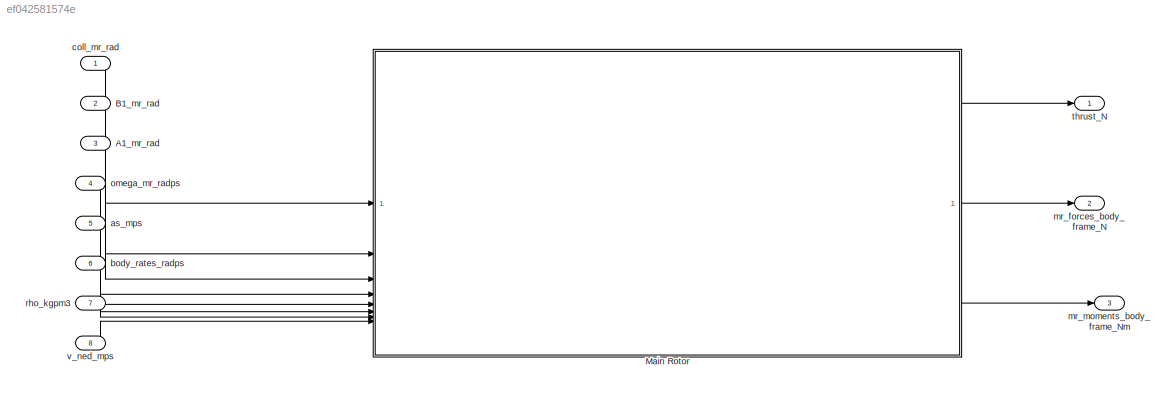
MODEL slx_ef042581574e
KIND library
CONFIG AbsTol = auto
CONFIG EnableMultiTasking = off
CONFIG FixedStep = auto
CONFIG MaxStep = auto
CONFIG MinStep = auto
CONFIG RelTol = 1e-3
CONFIG SampleTimeConstraint = Unconstrained
CONFIG SolverName = VariableStepAuto
CONFIG StartTime = 0.0
CONFIG StopTime = 10.0
BLOCK [Inport] A1_mr_rad
  Port = 3
BLOCK [Inport] B1_mr_rad
  Port = 2
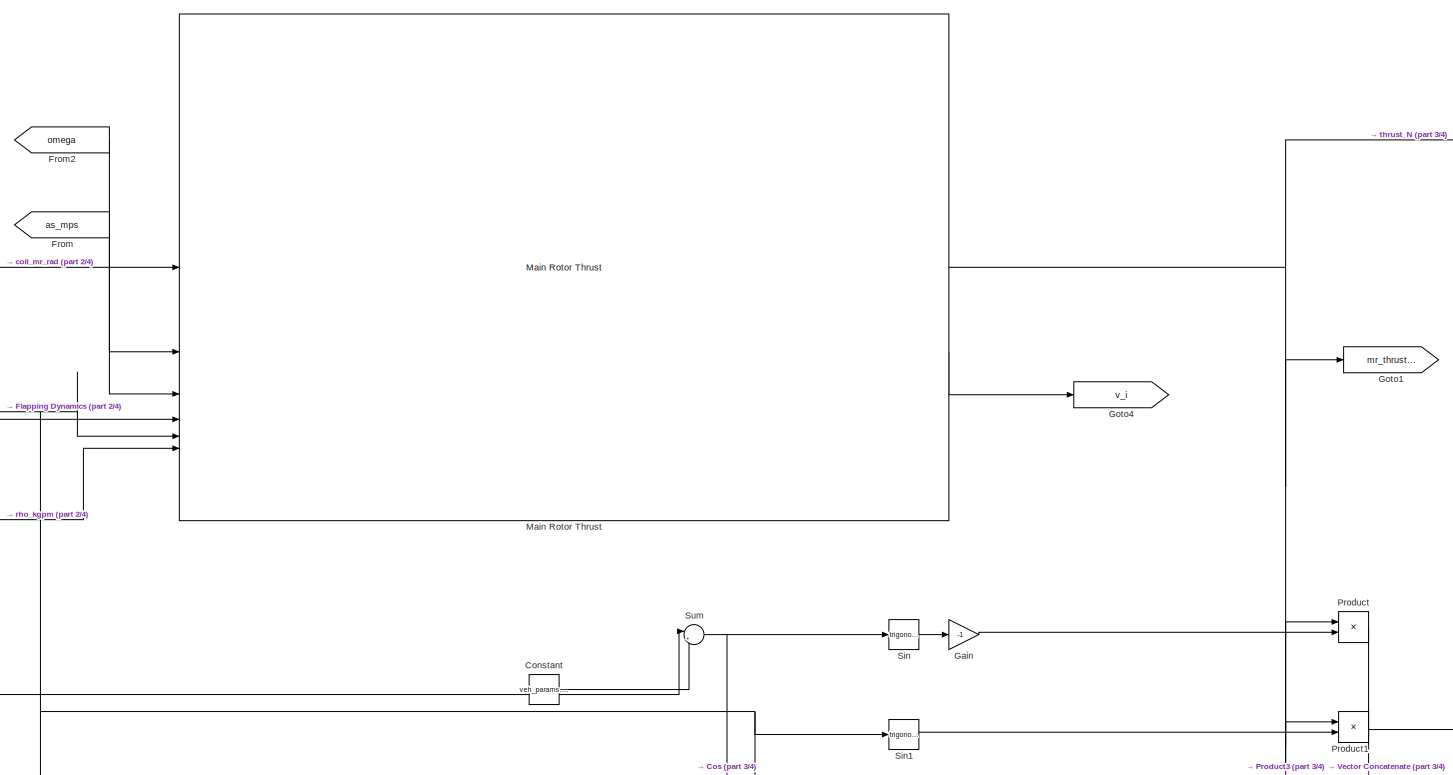
[diagram: Main Rotor - part 1/4, top center region]
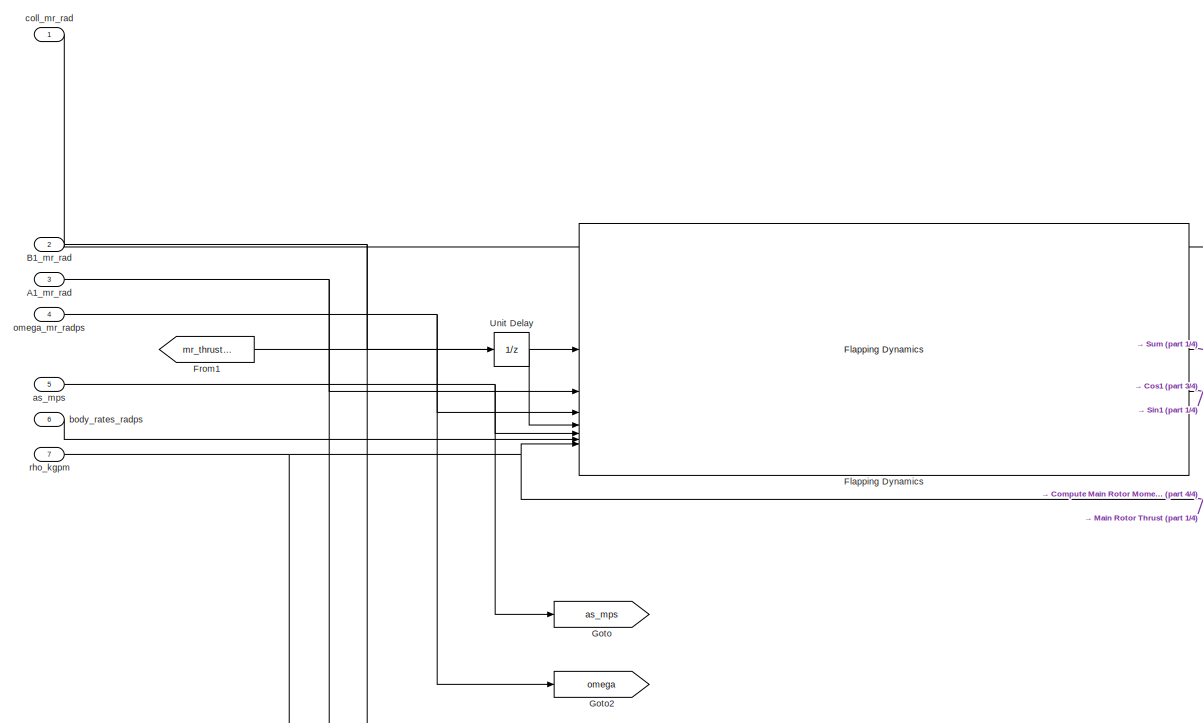
[diagram: Main Rotor - part 2/4, top left region]
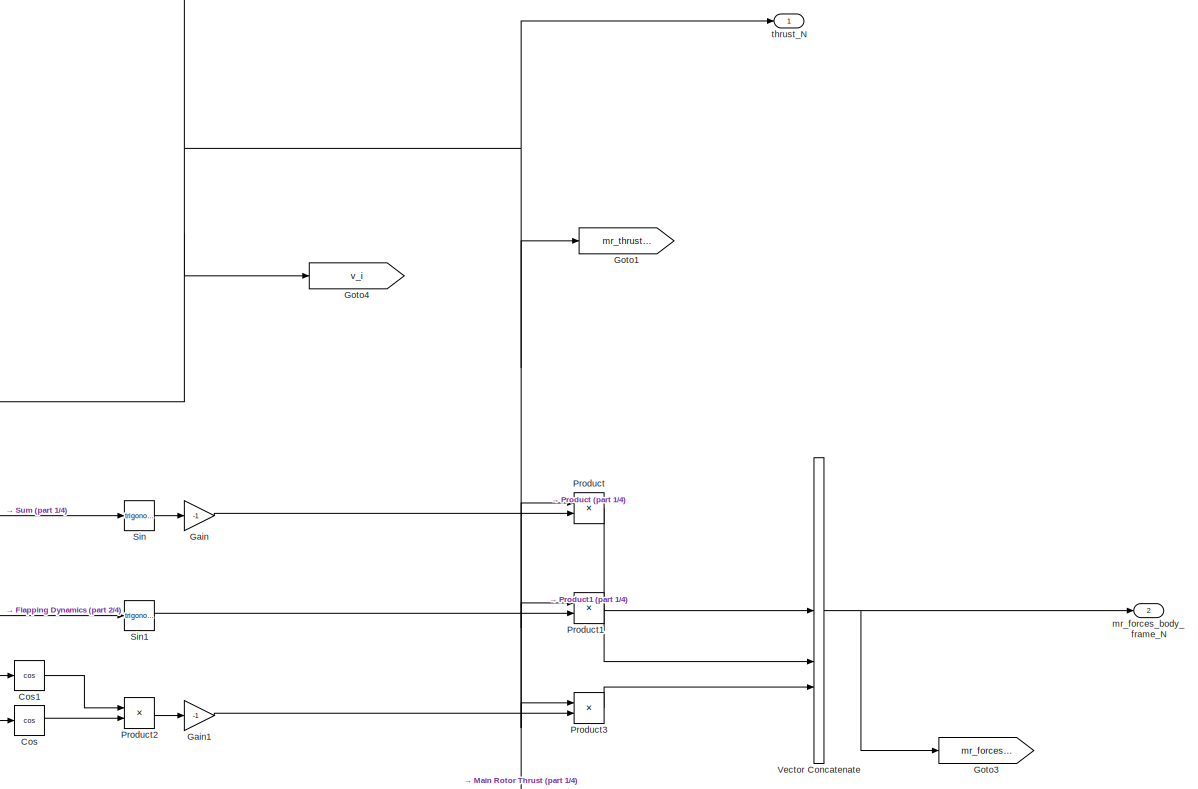
[diagram: Main Rotor - part 3/4, middle right region]
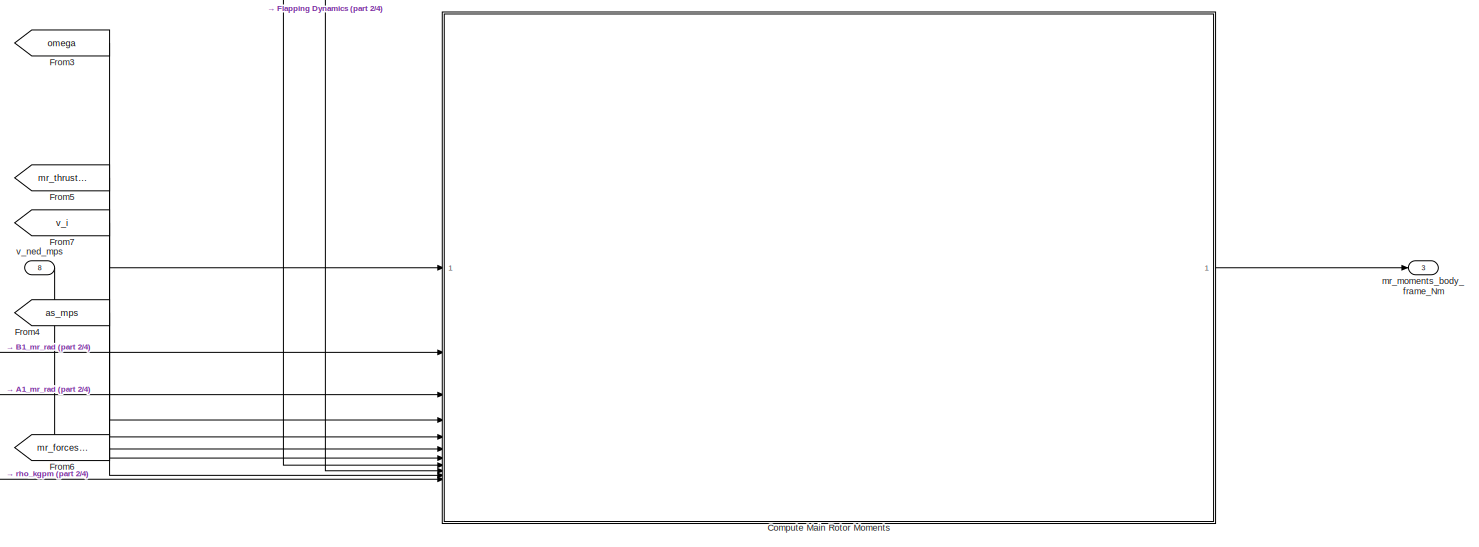
[diagram: Main Rotor - part 4/4, bottom center region]
BLOCK [SubSystem] Main Rotor
BLOCK [Inport] Main Rotor/A1_mr_rad
  Port = 3
BLOCK [Inport] Main Rotor/B1_mr_rad
  Port = 2
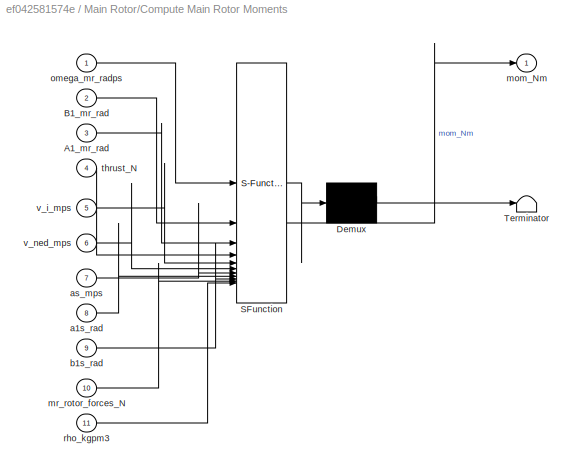
BLOCK [SubSystem] Main Rotor/Compute Main Rotor Moments
  ErrorFcn = Stateflow.Translate.translate
  LibrarySourceBlock = simulink/User-Defined\nFunctions/MATLAB Function
  PermitHierarchicalResolution = ExplicitOnly
  SFBlockType = MATLAB Function
  TreatAsAtomicUnit = on
BLOCK [Demux] Main Rotor/Compute Main Rotor Moments/ Demux 
  Outputs = 1
BLOCK [S-Function] Main Rotor/Compute Main Rotor Moments/ SFunction 
  EnableBusSupport = off
  FunctionName = sf_sfun
  Parameters = universal_constants,veh_params
  PortCounts = [11 2]
  SFcnIsStateOwnerBlock = off
  SFunctionDeploymentMode = off
  Tag = Stateflow S-Function 1
BLOCK [Terminator] Main Rotor/Compute Main Rotor Moments/ Terminator 
BLOCK [Inport] Main Rotor/Compute Main Rotor Moments/A1_mr_rad
  Port = 3
BLOCK [Inport] Main Rotor/Compute Main Rotor Moments/B1_mr_rad
  Port = 2
BLOCK [Inport] Main Rotor/Compute Main Rotor Moments/a1s_rad
  Port = 8
BLOCK [Inport] Main Rotor/Compute Main Rotor Moments/as_mps
  Port = 7
BLOCK [Inport] Main Rotor/Compute Main Rotor Moments/b1s_rad
  Port = 9
BLOCK [Outport] Main Rotor/Compute Main Rotor Moments/mom_Nm
BLOCK [Inport] Main Rotor/Compute Main Rotor Moments/mr_rotor_forces_N
  Port = 10
BLOCK [Inport] Main Rotor/Compute Main Rotor Moments/omega_mr_radps
BLOCK [Inport] Main Rotor/Compute Main Rotor Moments/rho_kgpm3
  Port = 11
BLOCK [Inport] Main Rotor/Compute Main Rotor Moments/thrust_N
  Port = 4
BLOCK [Inport] Main Rotor/Compute Main Rotor Moments/v_i_mps
  Port = 5
BLOCK [Inport] Main Rotor/Compute Main Rotor Moments/v_ned_mps
  Port = 6
BLOCK [Constant] Main Rotor/Constant
  SampleTime = plant_sample_time_s
  Value = veh_params.main_rotor.shaft_tilt_rad
BLOCK [Trigonometry] Main Rotor/Cos
  Operator = cos
BLOCK [Trigonometry] Main Rotor/Cos1
  Operator = cos
BLOCK [Reference] Main Rotor/Flapping Dynamics  REF=flapping_dynamics/Flapping Dynamics  (lib defined in slx_0f8428bc6f82)
  SourceBlock = flapping_dynamics/Flapping Dynamics
  SourceType = SubSystem
BLOCK [From] Main Rotor/From
  GotoTag = as_mps
BLOCK [From] Main Rotor/From1
  GotoTag = mr_thrust_N
BLOCK [From] Main Rotor/From2
  GotoTag = omega
BLOCK [From] Main Rotor/From3
  GotoTag = omega
BLOCK [From] Main Rotor/From4
  GotoTag = as_mps
BLOCK [From] Main Rotor/From5
  GotoTag = mr_thrust_N
BLOCK [From] Main Rotor/From6
  GotoTag = mr_forces_N
BLOCK [From] Main Rotor/From7
  GotoTag = v_i
BLOCK [Gain] Main Rotor/Gain
  Gain = -1
BLOCK [Gain] Main Rotor/Gain1
  Gain = -1
BLOCK [Goto] Main Rotor/Goto
  GotoTag = as_mps
BLOCK [Goto] Main Rotor/Goto1
  GotoTag = mr_thrust_N
BLOCK [Goto] Main Rotor/Goto2
  GotoTag = omega
BLOCK [Goto] Main Rotor/Goto3
  GotoTag = mr_forces_N
BLOCK [Goto] Main Rotor/Goto4
  GotoTag = v_i
BLOCK [Reference] Main Rotor/Main Rotor Thrust  REF=mr_thrust/Main Rotor Thrust  (lib defined in slx_edb5a6849d61)
  SourceBlock = mr_thrust/Main Rotor Thrust
  SourceType = SubSystem
BLOCK [Product] Main Rotor/Product
BLOCK [Product] Main Rotor/Product1
BLOCK [Product] Main Rotor/Product2
BLOCK [Product] Main Rotor/Product3
BLOCK [Trigonometry] Main Rotor/Sin
BLOCK [Trigonometry] Main Rotor/Sin1
BLOCK [Sum] Main Rotor/Sum
  Inputs = |++
BLOCK [UnitDelay] Main Rotor/Unit Delay
  HasFrameUpgradeWarning = on
  SampleTime = -1
BLOCK [Concatenate] Main Rotor/Vector Concatenate
  NumInputs = 3
BLOCK [Inport] Main Rotor/as_mps
  Port = 5
BLOCK [Inport] Main Rotor/body_rates_radps
  Port = 6
BLOCK [Inport] Main Rotor/coll_mr_rad
BLOCK [Outport] Main Rotor/mr_forces_body_frame_N
  OutDataTypeStr = double
  Port = 2
  PortDimensions = [3, 1]
  Unit = N
BLOCK [Outport] Main Rotor/mr_moments_body_frame_Nm
  OutDataTypeStr = double
  Port = 3
  PortDimensions = [3, 1]
  Unit = N*m
BLOCK [Inport] Main Rotor/omega_mr_radps
  Port = 4
BLOCK [Inport] Main Rotor/rho_kgpm
  Port = 7
BLOCK [Outport] Main Rotor/thrust_N
BLOCK [Inport] Main Rotor/v_ned_mps
  OutDataTypeStr = double
  Port = 8
  PortDimensions = [3, 1]
  Unit = m/s
BLOCK [Inport] as_mps
  Port = 5
BLOCK [Inport] body_rates_radps
  Port = 6
BLOCK [Inport] coll_mr_rad
BLOCK [Outport] mr_forces_body_frame_N
  OutDataTypeStr = double
  Port = 2
  PortDimensions = [3, 1]
  Unit = N
BLOCK [Outport] mr_moments_body_frame_Nm
  OutDataTypeStr = double
  Port = 3
  PortDimensions = [3, 1]
  Unit = N*m
BLOCK [Inport] omega_mr_radps
  Port = 4
BLOCK [Inport] rho_kgpm3
  Port = 7
BLOCK [Outport] thrust_N
BLOCK [Inport] v_ned_mps
  OutDataTypeStr = double
  Port = 8
  PortDimensions = [3, 1]
  Unit = m/s
LINE A1_mr_rad:1 -> Main Rotor:3
LINE B1_mr_rad:1 -> Main Rotor:2
NET Main Rotor/A1_mr_rad:1 -> Main Rotor/Compute Main Rotor Moments:3, Main Rotor/Flapping Dynamics:2
NET Main Rotor/B1_mr_rad:1 -> Main Rotor/Compute Main Rotor Moments:2, Main Rotor/Flapping Dynamics:1
LINE Main Rotor/Compute Main Rotor Moments:1 -> Main Rotor/mr_moments_body_frame_Nm:1
LINE Main Rotor/Constant:1 -> Main Rotor/Sum:2
LINE Main Rotor/Cos1:1 -> Main Rotor/Product2:1
LINE Main Rotor/Cos:1 -> Main Rotor/Product2:2
NET Main Rotor/Flapping Dynamics:1 -> Main Rotor/Compute Main Rotor Moments:8, Main Rotor/Main Rotor Thrust:4, Main Rotor/Sum:1
NET Main Rotor/Flapping Dynamics:2 -> Main Rotor/Compute Main Rotor Moments:9, Main Rotor/Cos1:1, Main Rotor/Main Rotor Thrust:5, Main Rotor/Sin1:1
LINE Main Rotor/From1:1 -> Main Rotor/Unit Delay:1
LINE Main Rotor/From2:1 -> Main Rotor/Main Rotor Thrust:2
LINE Main Rotor/From3:1 -> Main Rotor/Compute Main Rotor Moments:1
LINE Main Rotor/From4:1 -> Main Rotor/Compute Main Rotor Moments:7
LINE Main Rotor/From5:1 -> Main Rotor/Compute Main Rotor Moments:4
LINE Main Rotor/From6:1 -> Main Rotor/Compute Main Rotor Moments:10
LINE Main Rotor/From7:1 -> Main Rotor/Compute Main Rotor Moments:5
LINE Main Rotor/From:1 -> Main Rotor/Main Rotor Thrust:3
LINE Main Rotor/Gain1:1 -> Main Rotor/Product3:2
LINE Main Rotor/Gain:1 -> Main Rotor/Product:2
NET Main Rotor/Main Rotor Thrust:1 -> Main Rotor/Goto1:1, Main Rotor/Product1:1, Main Rotor/Product3:1, Main Rotor/Product:1, Main Rotor/thrust_N:1
LINE Main Rotor/Main Rotor Thrust:2 -> Main Rotor/Goto4:1
LINE Main Rotor/Product1:1 -> Main Rotor/Vector Concatenate:2
LINE Main Rotor/Product2:1 -> Main Rotor/Gain1:1
LINE Main Rotor/Product3:1 -> Main Rotor/Vector Concatenate:3
LINE Main Rotor/Product:1 -> Main Rotor/Vector Concatenate:1
LINE Main Rotor/Sin1:1 -> Main Rotor/Product1:2
LINE Main Rotor/Sin:1 -> Main Rotor/Gain:1
NET Main Rotor/Sum:1 -> Main Rotor/Cos:1, Main Rotor/Sin:1
LINE Main Rotor/Unit Delay:1 -> Main Rotor/Flapping Dynamics:4
NET Main Rotor/Vector Concatenate:1 -> Main Rotor/Goto3:1, Main Rotor/mr_forces_body_frame_N:1
NET Main Rotor/as_mps:1 -> Main Rotor/Flapping Dynamics:5, Main Rotor/Goto:1
LINE Main Rotor/body_rates_radps:1 -> Main Rotor/Flapping Dynamics:6
LINE Main Rotor/coll_mr_rad:1 -> Main Rotor/Main Rotor Thrust:1
NET Main Rotor/omega_mr_radps:1 -> Main Rotor/Flapping Dynamics:3, Main Rotor/Goto2:1
NET Main Rotor/rho_kgpm:1 -> Main Rotor/Compute Main Rotor Moments:11, Main Rotor/Flapping Dynamics:7, Main Rotor/Main Rotor Thrust:6
LINE Main Rotor/v_ned_mps:1 -> Main Rotor/Compute Main Rotor Moments:6
LINE Main Rotor:1 -> thrust_N:1
LINE Main Rotor:2 -> mr_forces_body_frame_N:1
LINE Main Rotor:3 -> mr_moments_body_frame_Nm:1
LINE as_mps:1 -> Main Rotor:5
LINE body_rates_radps:1 -> Main Rotor:6
LINE coll_mr_rad:1 -> Main Rotor:1
LINE omega_mr_radps:1 -> Main Rotor:4
LINE rho_kgpm3:1 -> Main Rotor:7
LINE v_ned_mps:1 -> Main Rotor:8
note: NET lines group one-source signal fan-out (src -> all destinations, sorted); 1:1 wires keep LINE
CHART Main Rotor/Compute Main Rotor Moments states=1 transitions=1
  STATE_LABEL 'eML_blk_kernel()'
  STATE_LABEL 'SCRIPT:\nfunction mom_Nm = main_rotor_moments(omega_mr_radps, B1_mr_rad, A1_mr_rad, thrust_N, v_i_mps, ...\n                                     v_ned_mps, as_mps, a1s_rad, b1s_rad, ...\n                                     mr_rotor_forces_N, rho_kgpm3, veh_params, universal_constants)\n%MAIN_ROTOR_MOMENTS Computes moments in body axis generated by the\n%main rotor\n%\n%Inputs:\n%omega_mr_radps           ...<+1118ch>'
CHART  states=0 transitions=0
